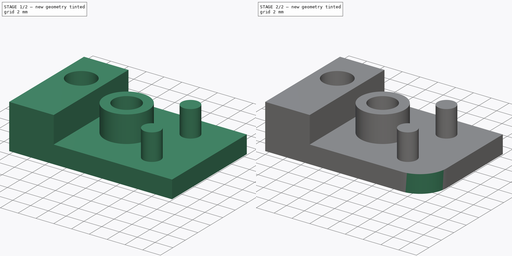
[diagram: build sequence overview — one tinted view per stage of 2, left to right]
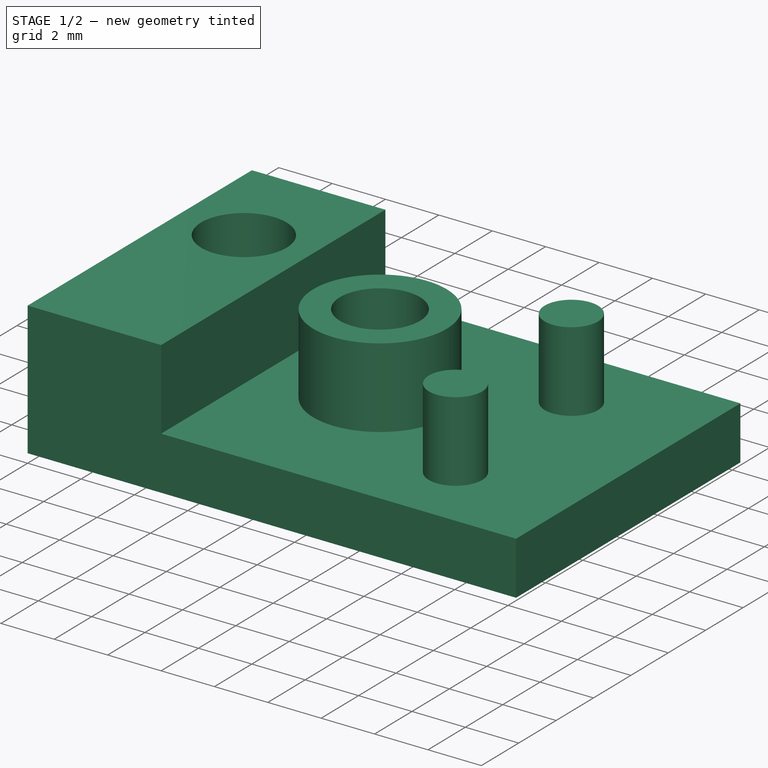
[diagram: stage 1 of 2 — iso view after this stage's code; geometry added in this stage tinted green]
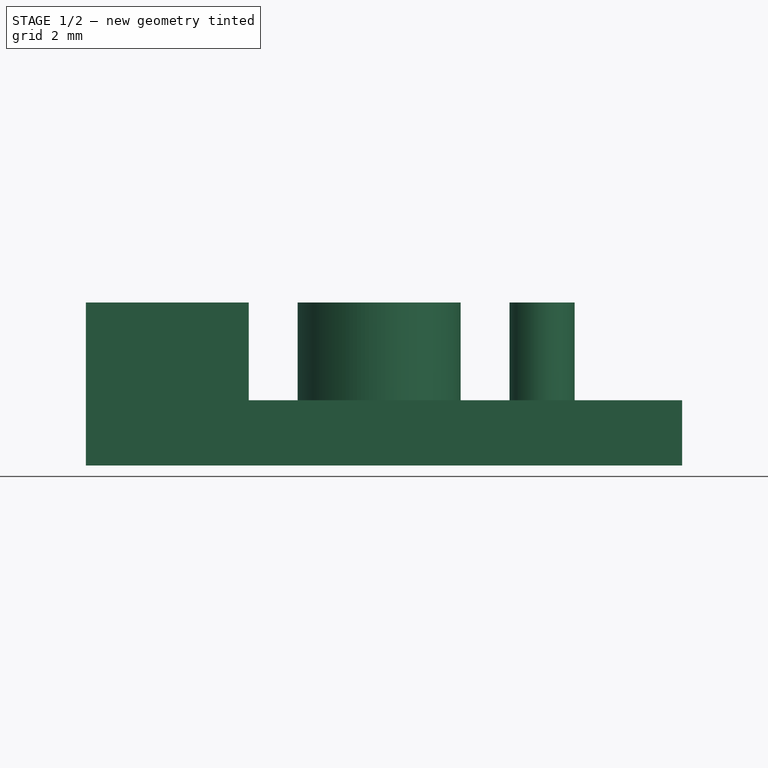
[diagram: stage 1 of 2 — front view after this stage's code; geometry added in this stage tinted green]
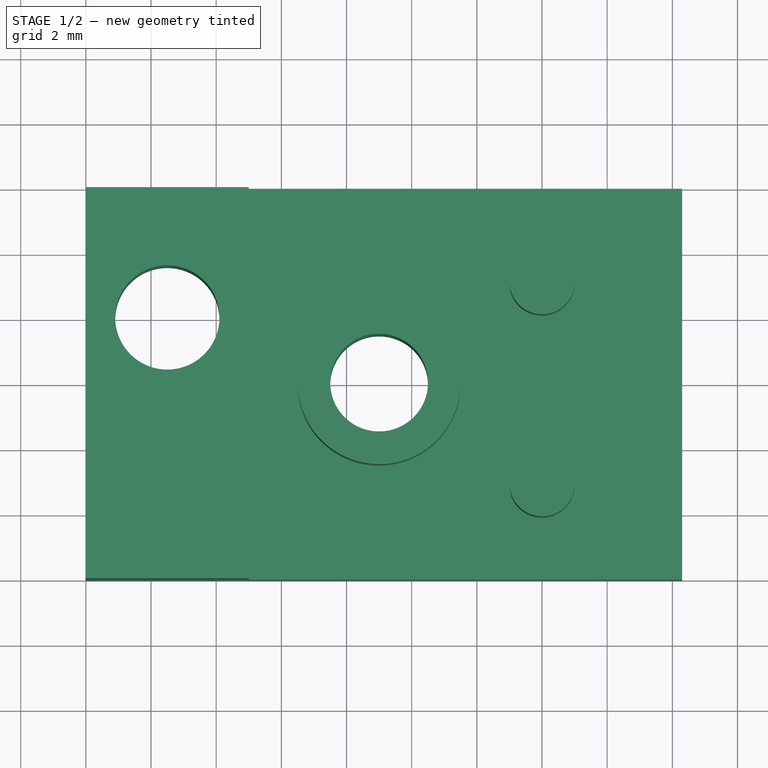
[diagram: stage 1 of 2 — top view after this stage's code; geometry added in this stage tinted green]
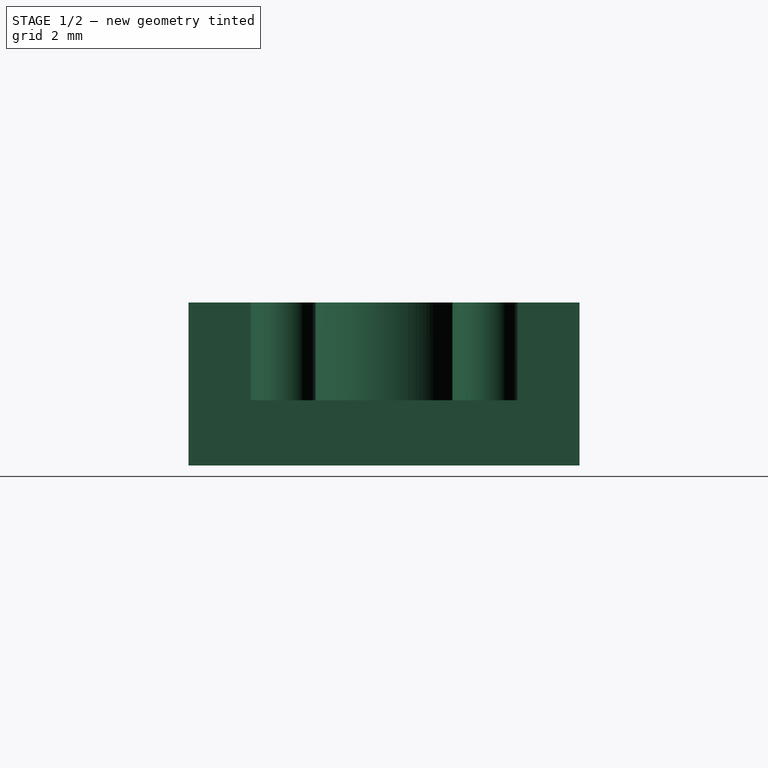
[diagram: stage 1 of 2 — right view after this stage's code; geometry added in this stage tinted green]
FCSTD DOCUMENT  (FreeCAD 0.18R14090 (Git))
Label: YEndStopClip2
License: All rights reserved
LicenseURL: http://en.wikipedia.org/wiki/All_rights_reserved
objects: Sketcher::SketchObject×3, PartDesign::Pocket×2, PartDesign::Pad×1, PartDesign::Plane×1, PartDesign::Fillet×1, PartDesign::Body×1, App::Part×1
note: 12 computed .brp shape members not serialized (recipe doc carries the construction recipe); baked Part::Feature solids carry a one-line shape summary decoded from their .brp

FEATURE [Sketcher::SketchObject] Sketch  label="BaseSketch"
  MapMode = 5
  Support = -> [XY_Plane001]
  sketch-geometry (7):
    g0: LineSegment StartX=0 StartY=0 StartZ=0 EndX=18.3 EndY=0 EndZ=0
    g1: LineSegment StartX=18.3 StartY=0 StartZ=0 EndX=18.3 EndY=12 EndZ=0
    g2: LineSegment StartX=18.3 StartY=12 StartZ=0 EndX=0 EndY=12 EndZ=0
    g3: LineSegment StartX=0 StartY=12 StartZ=0 EndX=0 EndY=0 EndZ=0
    g4: LineSegment [constr] StartX=0 StartY=6 StartZ=0 EndX=18.3 EndY=6 EndZ=0
    g5: Circle CenterX=9 CenterY=6 CenterZ=0 NormalX=0 NormalY=0 NormalZ=1 AngleXU=0 Radius=1.5
    g6: Circle CenterX=2.5 CenterY=8 CenterZ=0 NormalX=0 NormalY=0 NormalZ=1 AngleXU=0 Radius=1.6
  constraints (21):
    c: Coincident(g0,g1)
    c: Coincident(g1,g2)
    c: Coincident(g2,g3)
    c: Coincident(g3,g0)
    c: Horizontal(g0)
    c: Horizontal(g2)
    c: Vertical(g1)
    c: Vertical(g3)
    c: Coincident(g0,g-1)
    c: Distance(g2) = 18.3
    c: Distance(g3) = 12
    c: PointOnObject(g4,g3)
    c: PointOnObject(g4,g1)
    c: Horizontal(g4)
    c: Distance(g4,g-1) = 6
    c: PointOnObject(g5,g4)
    c: Distance(g5,g1) = 9.3
    c: Radius(g5) = 1.5
    c: Radius(g6) = 1.6
    c: Distance(g6,g3) = 2.5
    c: Distance(g6,g4) = 2
FEATURE [PartDesign::Pad] Pad  label="BasePad"
  Length = 5
  Length2 = 100
  Profile = -> Sketch
  Type = 0
FEATURE [PartDesign::Plane] DatumPlane  label="ClipPlane"
  AttachmentOffset = pos=(0,0,2) rot=(0,0,1;0rad)
  MapMode = 5
  Placement = pos=(0,0,2) rot=(0,0,1;0rad)
  Support = -> [XY_Plane001]
FEATURE [Sketcher::SketchObject] Sketch001  label="SwitchClipSketch"
  ExternalGeometry = -> [Sketch]
  MapMode = 5
  Placement = pos=(0,0,2) rot=(0,0,1;0rad)
  Support = -> [DatumPlane]
  sketch-geometry (10):
    g0: LineSegment StartX=5 StartY=0 StartZ=0 EndX=19 EndY=0 EndZ=0
    g1: LineSegment StartX=19 StartY=0 StartZ=0 EndX=19 EndY=12 EndZ=0
    g2: LineSegment StartX=19 StartY=12 StartZ=0 EndX=5 EndY=12 EndZ=0
    g3: LineSegment StartX=5 StartY=12 StartZ=0 EndX=5 EndY=0 EndZ=0
    g4: Circle CenterX=9 CenterY=6 CenterZ=0 NormalX=0 NormalY=0 NormalZ=1 AngleXU=0 Radius=2.5
    g5: LineSegment [constr] StartX=9 StartY=6 StartZ=0 EndX=14 EndY=6 EndZ=0
    g6: LineSegment [constr] StartX=14 StartY=6 StartZ=0 EndX=14 EndY=9.1 EndZ=0
    g7: LineSegment [constr] StartX=14 StartY=6 StartZ=0 EndX=14 EndY=2.9 EndZ=0
    g8: Circle CenterX=14 CenterY=9.1 CenterZ=0 NormalX=0 NormalY=0 NormalZ=1 AngleXU=0 Radius=1
    g9: Circle CenterX=14 CenterY=2.9 CenterZ=0 NormalX=0 NormalY=0 NormalZ=1 AngleXU=0 Radius=1
  constraints (26):
    c: Coincident(g0,g1)
    c: Coincident(g1,g2)
    c: Coincident(g2,g3)
    c: Coincident(g3,g0)
    c: Horizontal(g0)
    c: Horizontal(g2)
    c: Vertical(g1)
    c: Vertical(g3)
    c: PointOnObject(g0,g-1)
    c: DistanceX(g-2,g2) = 5
    c: Distance(g1) = 12
    c: Distance(g2) = 14
    c: Radius(g4) = 2.5
    c: Coincident(g5,g4)
    c: Horizontal(g5)
    c: Coincident(g6,g5)
    c: Vertical(g6)
    c: Coincident(g7,g5)
    c: Vertical(g7)
    c: Equal(g7,g6)
    c: Distance(g6,g7) = 6.2
    c: Distance(g5) = 5
    c: Coincident(g8,g6)
    c: Coincident(g9,g7)
    c: Equal(g9,g8)
    c: Radius(g8) = 1
FEATURE [PartDesign::Pocket] Pocket  label="SwitchClipPocket"
  BaseFeature = -> Pad
  Length = 5
  Length2 = 100
  Profile = -> Sketch001
  Reversed = true
  Type = 1
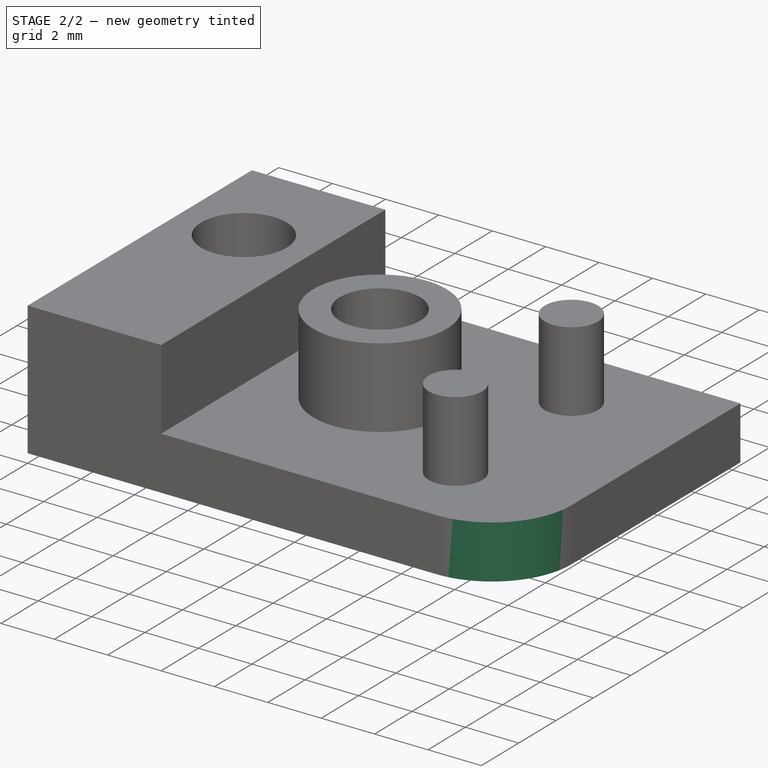
[diagram: stage 2 of 2 — iso view after this stage's code; geometry added in this stage tinted green]
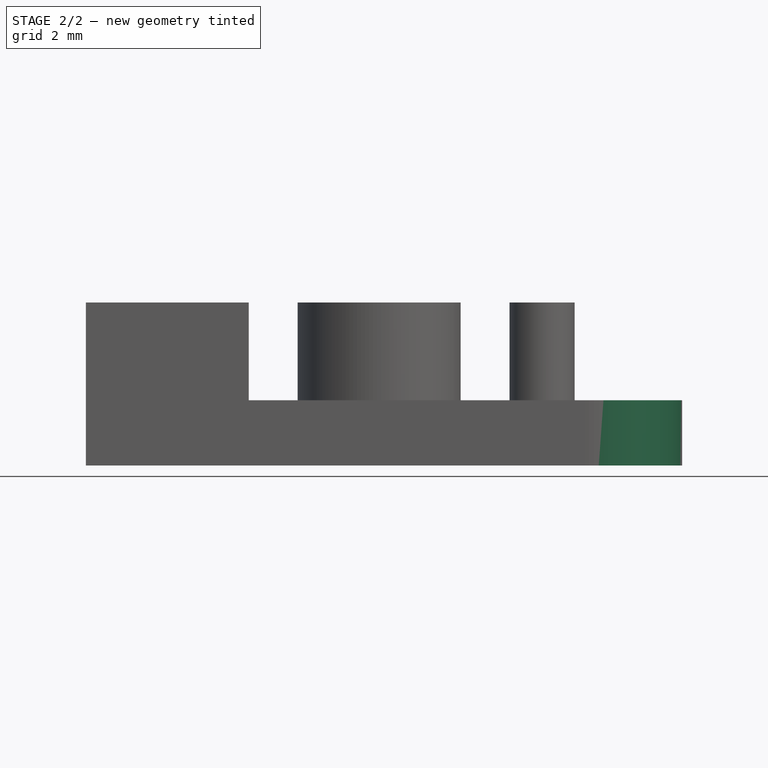
[diagram: stage 2 of 2 — front view after this stage's code; geometry added in this stage tinted green]
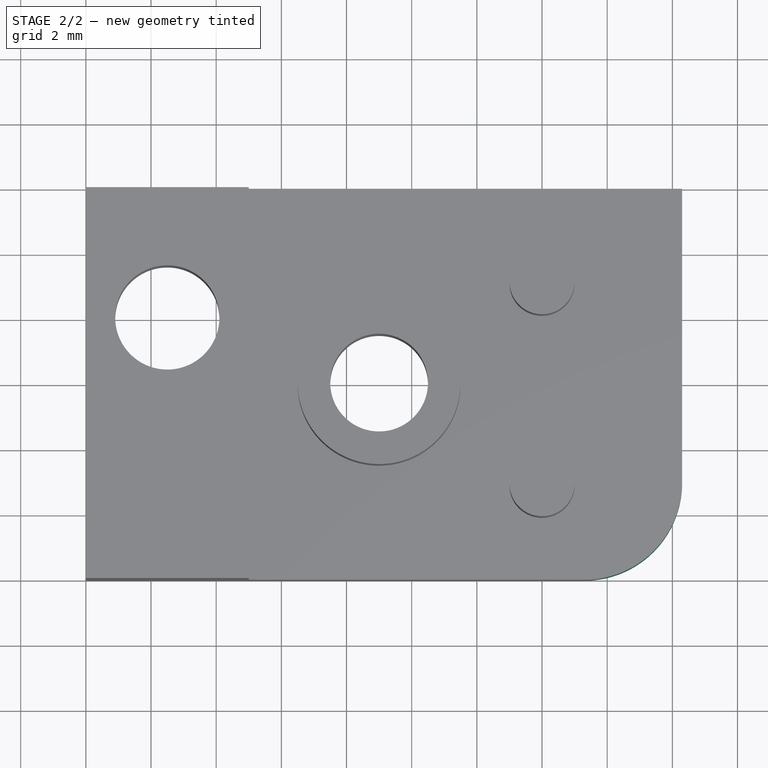
[diagram: stage 2 of 2 — top view after this stage's code; geometry added in this stage tinted green]
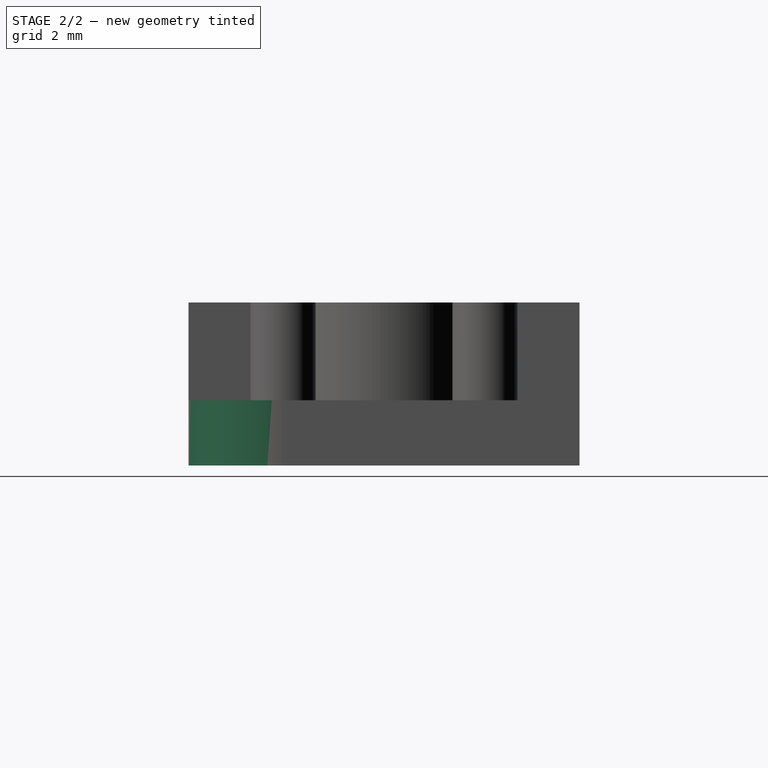
[diagram: stage 2 of 2 — right view after this stage's code; geometry added in this stage tinted green]
FEATURE [Sketcher::SketchObject] Sketch002  label="ScrewHeadSketch"
  ExternalGeometry = -> [Sketch]
  MapMode = 5
  Support = -> [XY_Plane001]
  sketch-geometry (2):
    g0: Circle CenterX=2.5 CenterY=8 CenterZ=0 NormalX=0 NormalY=0 NormalZ=1 AngleXU=0 Radius=3
    g1: Circle CenterX=9 CenterY=6 CenterZ=0 NormalX=0 NormalY=0 NormalZ=1 AngleXU=0 Radius=3
  constraints (4):
    c: Coincident(g0,g-4)
    c: Coincident(g1,g-3)
    c: Radius(g0) = 3
    c: Equal(g0,g1)
FEATURE [PartDesign::Pocket] Pocket001  label="ScrewHeadPocket"
  BaseFeature = -> Pocket
  Length = 1
  Length2 = 100
  Profile = -> Sketch002
  Reversed = true
  Type = 0
FEATURE [PartDesign::Fillet] Fillet
  Base = -> Pocket001 [Edge2]
  BaseFeature = -> Pocket001
  Radius = 3
FEATURE [PartDesign::Body] Body  label="SwitchClipBody"
  Group = -> [Sketch,Pad,DatumPlane,Sketch001,Pocket,Sketch002,Pocket001,Fillet]
  Origin = -> Origin001
  Placement = pos=(-12,0,6.3) rot=(0,0,1;0rad)
  Tip = -> Fillet
FEATURE [App::Part] Part  label="YEndStopClipPart"
  Group = -> [Body]
  License = CC BY 3.0
  LicenseURL = http://creativecommons.org/licenses/by/3.0/
  Origin = -> Origin
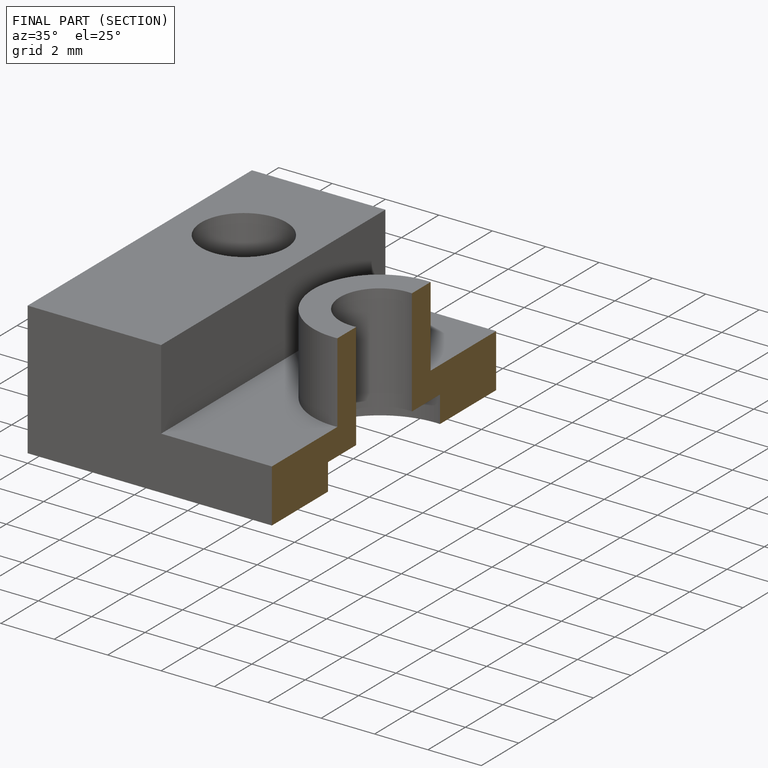
[diagram: finished part — half-section view (interior)]
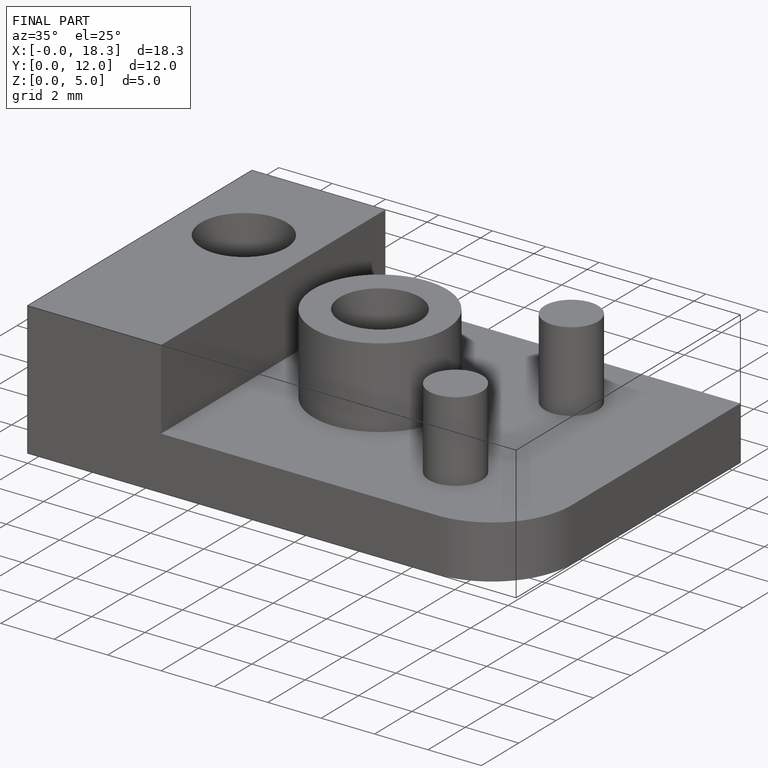
[diagram: finished part — iso view with bounding-box wireframe]
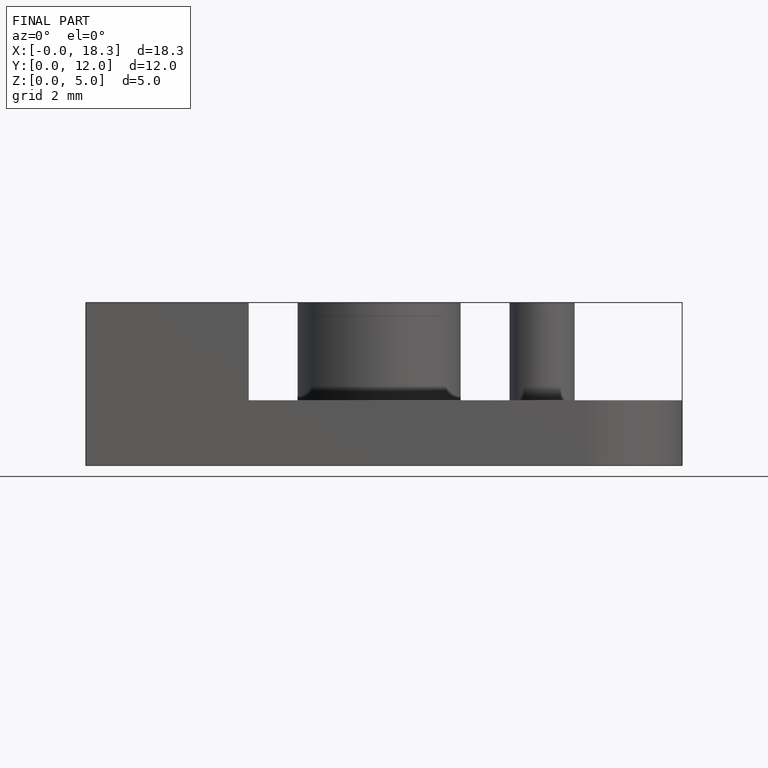
[diagram: finished part — front view with bounding-box wireframe]
